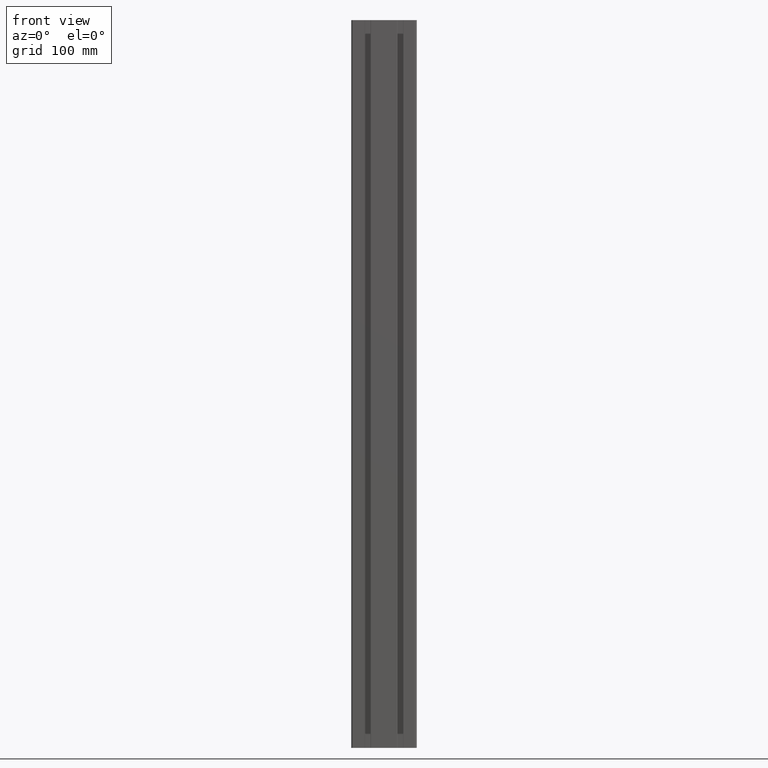
[diagram: clean part render]
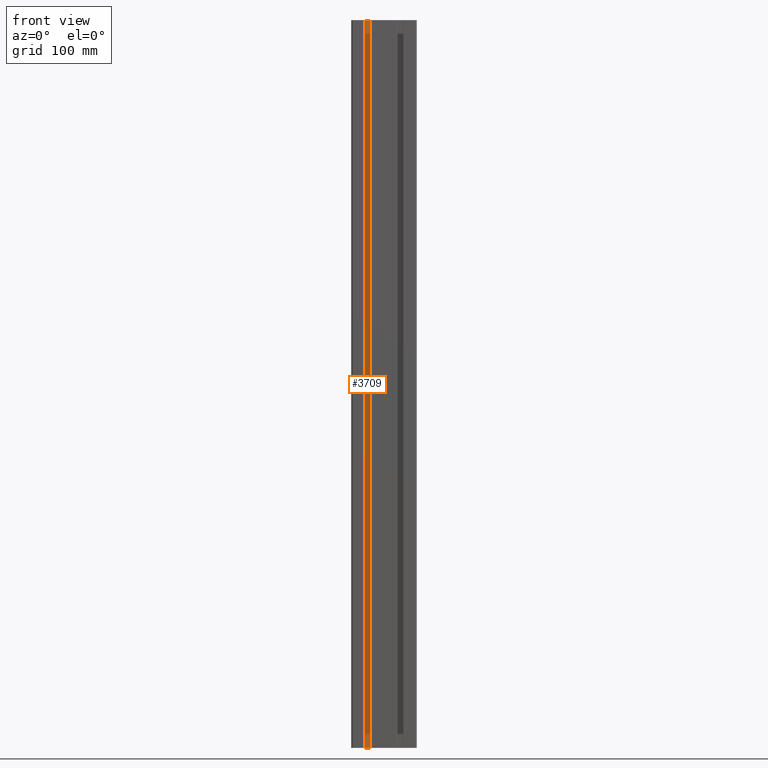
[diagram: same view with one face highlighted and labeled with its STEP entity id]
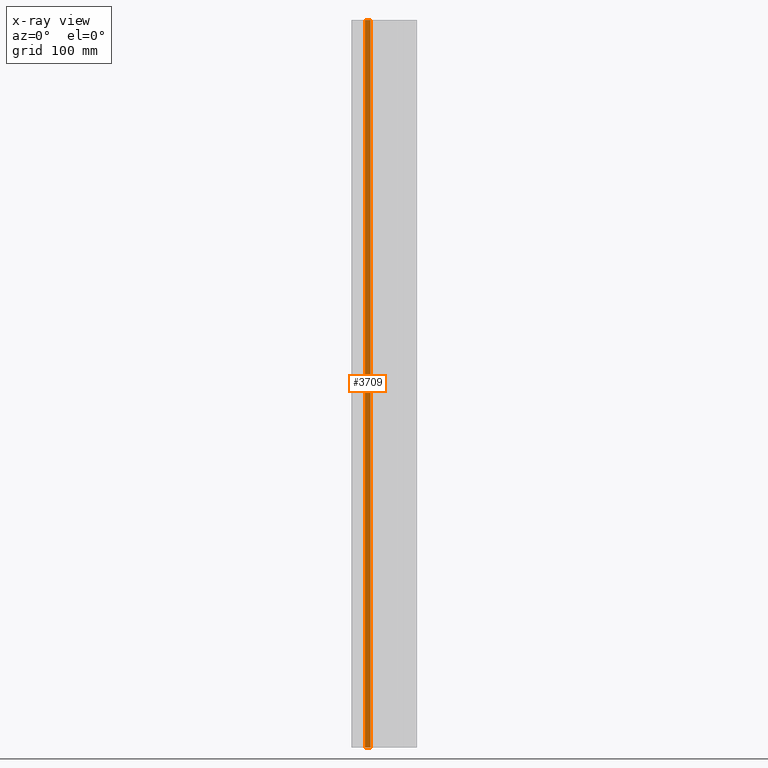
[diagram: x-ray of the same camera — body ghosted, the highlighted face saturated]
A machine part, front view. The second image highlights one B-rep face of the part: STEP entity #3709.
The next image is the same camera in x-ray: the body ghosted, the highlighted face saturated — about 0% of this face is hidden behind the body in this view.
In plain terms, the highlighted planar face has unit normal (0, -1, 0).
Its self-contained STEP definition (entity closure, byte-faithful):
#88=PLANE('',#4092);
#243=FACE_OUTER_BOUND('',#445,.T.);
#445=EDGE_LOOP('',(#3207,#3208,#3209,#3210));
#639=LINE('',#5638,#1025);
#755=LINE('',#6043,#1141);
#831=LINE('',#6243,#1217);
#832=LINE('',#6245,#1218);
#1025=VECTOR('',#4496,10.);
#1141=VECTOR('',#4814,10.);
#1217=VECTOR('',#5048,10.);
#1218=VECTOR('',#5051,10.);
#1602=VERTEX_POINT('',#5635);
#1603=VERTEX_POINT('',#5637);
#1790=VERTEX_POINT('',#6040);
#1791=VERTEX_POINT('',#6042);
#2010=EDGE_CURVE('',#1603,#1602,#639,.T.);
#2218=EDGE_CURVE('',#1790,#1791,#755,.T.);
#2319=EDGE_CURVE('',#1602,#1791,#831,.T.);
#2320=EDGE_CURVE('',#1603,#1790,#832,.T.);
#3207=ORIENTED_EDGE('',*,*,#2010,.T.);
#3208=ORIENTED_EDGE('',*,*,#2319,.T.);
#3209=ORIENTED_EDGE('',*,*,#2218,.F.);
#3210=ORIENTED_EDGE('',*,*,#2320,.F.);
#3709=ADVANCED_FACE('',(#243),#88,.T.);
#4092=AXIS2_PLACEMENT_3D('',#6244,#5049,#5050);
#4496=DIRECTION('',(1.,0.,0.));
#4814=DIRECTION('',(1.,0.,0.));
#5048=DIRECTION('',(0.,0.,1.));
#5049=DIRECTION('center_axis',(0.,-1.,0.));
#5050=DIRECTION('ref_axis',(1.,0.,0.));
#5051=DIRECTION('',(0.,0.,1.));
#5635=CARTESIAN_POINT('',(-18.55,-6.75,0.));
#5637=CARTESIAN_POINT('',(-26.45,-6.75,0.));
#5638=CARTESIAN_POINT('',(-26.45,-6.75,0.));
#6040=CARTESIAN_POINT('',(-26.45,-6.75,1000.));
#6042=CARTESIAN_POINT('',(-18.55,-6.75,1000.));
#6043=CARTESIAN_POINT('',(-26.45,-6.75,1000.));
#6243=CARTESIAN_POINT('',(-18.55,-6.75,0.));
#6244=CARTESIAN_POINT('Origin',(-26.45,-6.75,0.));
#6245=CARTESIAN_POINT('',(-26.45,-6.75,0.));